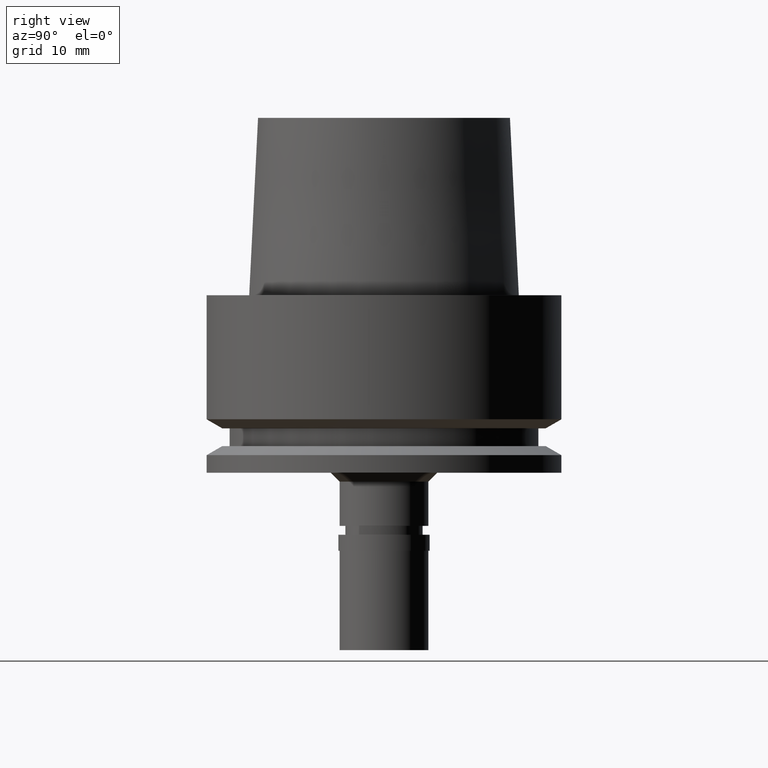
[diagram: clean part render]
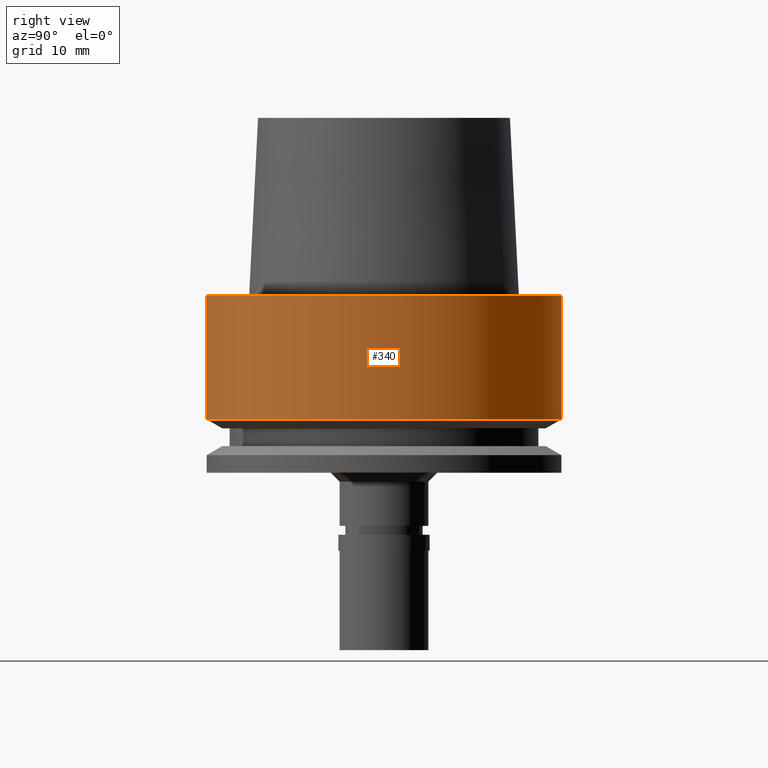
[diagram: same view with one face highlighted and labeled with its STEP entity id]
A machine part, right view. The second image highlights one B-rep face of the part: STEP entity #340.
In plain terms, the highlighted cylindrical surface (partial cylindrical patch) has radius 20 mm, axis along (0, 0, 1).
Its self-contained STEP definition (entity closure, byte-faithful):
#14 = AXIS2_PLACEMENT_3D ( 'NONE', #2136, #259, #765 ) ;
#26 = DIRECTION ( 'NONE',  ( 0.0000000000000000000, 0.0000000000000000000, 1.000000000000000000 ) ) ;
#36 = ORIENTED_EDGE ( 'NONE', *, *, #1817, .T. ) ;
#131 = EDGE_CURVE ( 'NONE', #332, #939, #1205, .T. ) ;
#151 = ORIENTED_EDGE ( 'NONE', *, *, #131, .T. ) ;
#220 = EDGE_CURVE ( 'NONE', #939, #1072, #442, .T. ) ;
#238 = ORIENTED_EDGE ( 'NONE', *, *, #220, .T. ) ;
#259 = DIRECTION ( 'NONE',  ( 0.0000000000000000000, 0.0000000000000000000, -1.000000000000000000 ) ) ;
#288 = CARTESIAN_POINT ( 'NONE',  ( 0.0000000000000000000, -20.00000000000000000, 0.0000000000000000000 ) ) ;
#306 = CARTESIAN_POINT ( 'NONE',  ( 0.0000000000000000000, -20.00000000000000000, -13.97927405538000123 ) ) ;
#332 = VERTEX_POINT ( 'NONE', #288 ) ;
#340 = ADVANCED_FACE ( 'NONE', ( #1765 ), #1750, .T. ) ;
#440 = VECTOR ( 'NONE', #805, 1000.000000000000000 ) ;
#442 = CIRCLE ( 'NONE', #1577, 20.00000000000000000 ) ;
#491 = EDGE_LOOP ( 'NONE', ( #36, #151, #238, #1453 ) ) ;
#705 = DIRECTION ( 'NONE',  ( 0.0000000000000000000, 0.0000000000000000000, 1.000000000000000000 ) ) ;
#765 = DIRECTION ( 'NONE',  ( 0.0000000000000000000, 1.000000000000000000, 0.0000000000000000000 ) ) ;
#805 = DIRECTION ( 'NONE',  ( 0.0000000000000000000, -2.439758400998999725E-14, -1.000000000000000000 ) ) ;
#939 = VERTEX_POINT ( 'NONE', #306 ) ;
#1031 = CARTESIAN_POINT ( 'NONE',  ( 0.0000000000000000000, 20.00000000000000000, 0.0000000000000000000 ) ) ;
#1050 = DIRECTION ( 'NONE',  ( 0.0000000000000000000, -1.000000000000000000, 0.0000000000000000000 ) ) ;
#1072 = VERTEX_POINT ( 'NONE', #1932 ) ;
#1205 = LINE ( 'NONE', #2031, #440 ) ;
#1211 = DIRECTION ( 'NONE',  ( 0.0000000000000000000, 2.439758400998999725E-14, -1.000000000000000000 ) ) ;
#1283 = VECTOR ( 'NONE', #1211, 1000.000000000000000 ) ;
#1378 = CARTESIAN_POINT ( 'NONE',  ( 0.0000000000000000000, 20.00000000000000000, 0.0000000000000000000 ) ) ;
#1409 = LINE ( 'NONE', #1031, #1283 ) ;
#1453 = ORIENTED_EDGE ( 'NONE', *, *, #1924, .F. ) ;
#1577 = AXIS2_PLACEMENT_3D ( 'NONE', #1902, #26, #1050 ) ;
#1673 = AXIS2_PLACEMENT_3D ( 'NONE', #2569, #705, #2408 ) ;
#1689 = VERTEX_POINT ( 'NONE', #1378 ) ;
#1750 = CYLINDRICAL_SURFACE ( 'NONE', #1673, 20.00000000000000000 ) ;
#1765 = FACE_OUTER_BOUND ( 'NONE', #491, .T. ) ;
#1767 = CIRCLE ( 'NONE', #14, 20.00000000000000000 ) ;
#1817 = EDGE_CURVE ( 'NONE', #1689, #332, #1767, .T. ) ;
#1902 = CARTESIAN_POINT ( 'NONE',  ( 0.0000000000000000000, 0.0000000000000000000, -13.97927405538000123 ) ) ;
#1924 = EDGE_CURVE ( 'NONE', #1689, #1072, #1409, .T. ) ;
#1932 = CARTESIAN_POINT ( 'NONE',  ( 0.0000000000000000000, 20.00000000000000000, -13.97927405538000123 ) ) ;
#2031 = CARTESIAN_POINT ( 'NONE',  ( 0.0000000000000000000, -20.00000000000000000, 0.0000000000000000000 ) ) ;
#2136 = CARTESIAN_POINT ( 'NONE',  ( 0.0000000000000000000, 0.0000000000000000000, 0.0000000000000000000 ) ) ;
#2408 = DIRECTION ( 'NONE',  ( 0.0000000000000000000, 1.000000000000000000, 0.0000000000000000000 ) ) ;
#2569 = CARTESIAN_POINT ( 'NONE',  ( 0.0000000000000000000, 0.0000000000000000000, -39.11499999999999488 ) ) ;